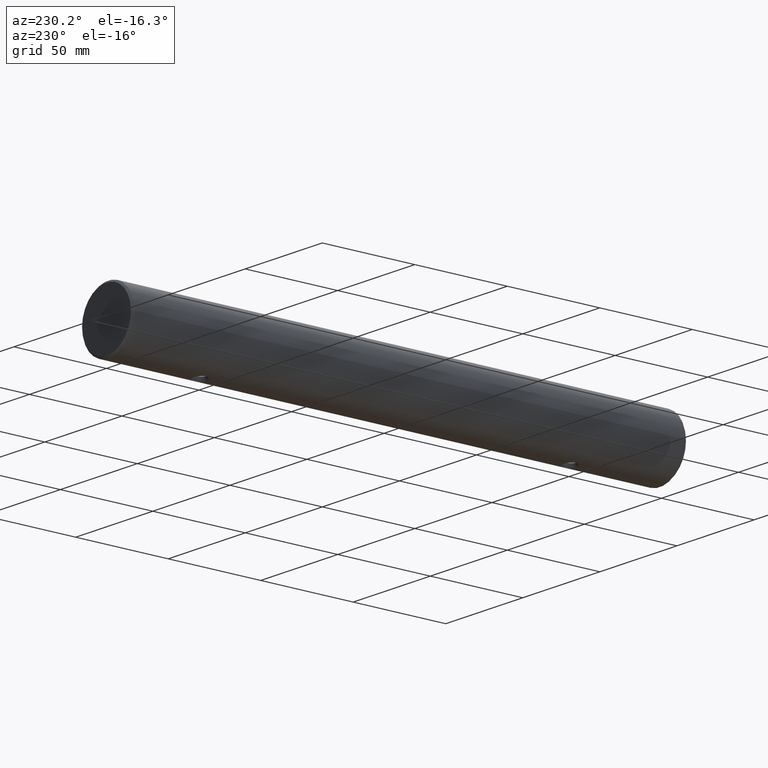
[diagram: clean part render]
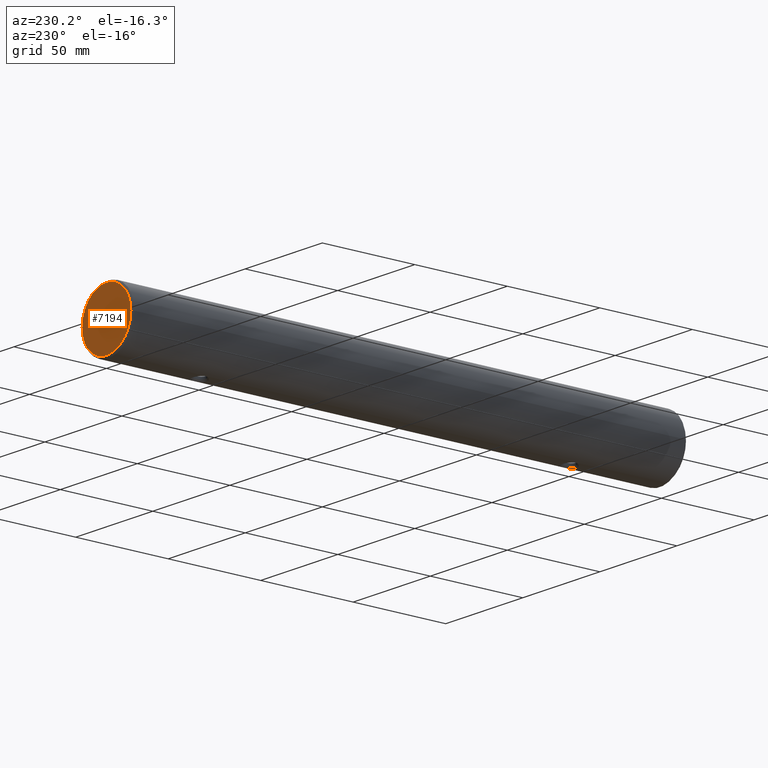
[diagram: same view with one face highlighted and labeled with its STEP entity id]
A machine part, auxiliary view. The second image highlights one B-rep face of the part: STEP entity #7194.
In plain terms, the highlighted planar face has unit normal (0, -1, 0).
Its self-contained STEP definition (entity closure, byte-faithful):
#734 = CARTESIAN_POINT ( 'NONE',  ( 15.84999999999997100, 150.0000000000000000, 0.0000000000000000000 ) ) ;
#1805 = DIRECTION ( 'NONE',  ( -1.000000000000000000, 0.0000000000000000000, 0.0000000000000000000 ) ) ;
#2323 = VERTEX_POINT ( 'NONE', #5495 ) ;
#3335 = DIRECTION ( 'NONE',  ( 1.000000000000000000, 3.061616997868382600E-016, 0.0000000000000000000 ) ) ;
#4301 = FACE_OUTER_BOUND ( 'NONE', #6602, .T. ) ;
#4481 = CIRCLE ( 'NONE', #10269, 15.85000000000001400 ) ;
#5495 = CARTESIAN_POINT ( 'NONE',  ( -15.85000000000005500, 150.0000000000000000, 2.002297516605929800E-015 ) ) ;
#5583 = ORIENTED_EDGE ( 'NONE', *, *, #13352, .T. ) ;
#5850 = DIRECTION ( 'NONE',  ( 3.061616997868382600E-016, -1.000000000000000000, 0.0000000000000000000 ) ) ;
#6254 = CARTESIAN_POINT ( 'NONE',  ( -4.286263797015732700E-014, 150.0000000000000000, 0.0000000000000000000 ) ) ;
#6388 = AXIS2_PLACEMENT_3D ( 'NONE', #15922, #5850, #3335 ) ;
#6602 = EDGE_LOOP ( 'NONE', ( #9083, #5583 ) ) ;
#7194 = ADVANCED_FACE ( 'NONE', ( #4301 ), #7222, .F. ) ;
#7222 = PLANE ( 'NONE',  #6388 ) ;
#7786 = AXIS2_PLACEMENT_3D ( 'NONE', #14269, #9330, #1805 ) ;
#8731 = DIRECTION ( 'NONE',  ( -3.061616997868382600E-016, 1.000000000000000000, -0.0000000000000000000 ) ) ;
#9083 = ORIENTED_EDGE ( 'NONE', *, *, #10389, .T. ) ;
#9330 = DIRECTION ( 'NONE',  ( -3.061616997868382600E-016, 1.000000000000000000, -0.0000000000000000000 ) ) ;
#10269 = AXIS2_PLACEMENT_3D ( 'NONE', #6254, #8731, #11255 ) ;
#10389 = EDGE_CURVE ( 'NONE', #13034, #2323, #4481, .T. ) ;
#11255 = DIRECTION ( 'NONE',  ( -1.000000000000000000, 0.0000000000000000000, 0.0000000000000000000 ) ) ;
#12367 = CIRCLE ( 'NONE', #7786, 15.85000000000001400 ) ;
#13034 = VERTEX_POINT ( 'NONE', #734 ) ;
#13352 = EDGE_CURVE ( 'NONE', #2323, #13034, #12367, .T. ) ;
#14269 = CARTESIAN_POINT ( 'NONE',  ( -4.286263797015732700E-014, 150.0000000000000000, 0.0000000000000000000 ) ) ;
#15922 = CARTESIAN_POINT ( 'NONE',  ( 15.84999999999997100, 150.0000000000000000, 0.0000000000000000000 ) ) ;